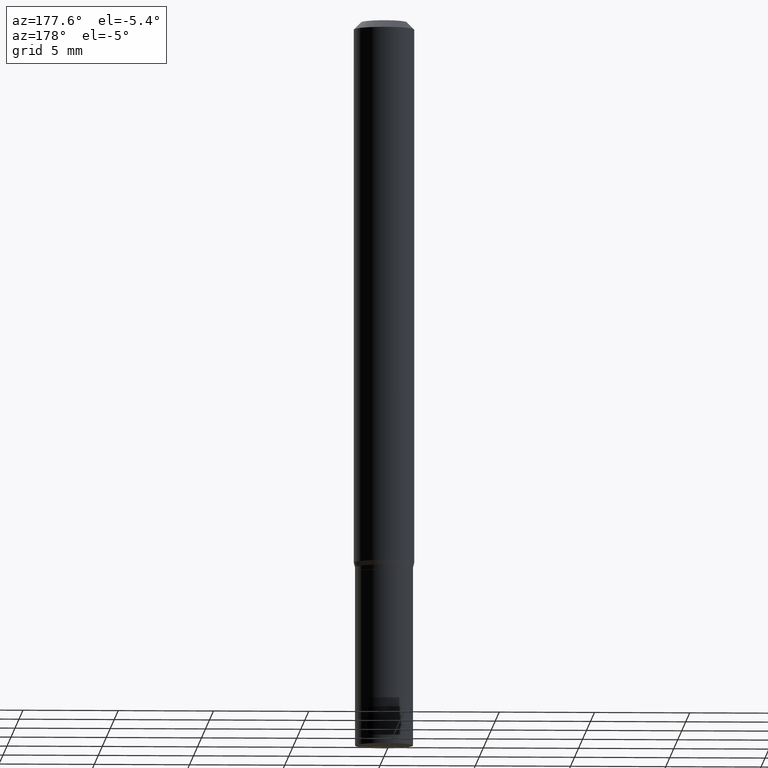
[diagram: clean part render]
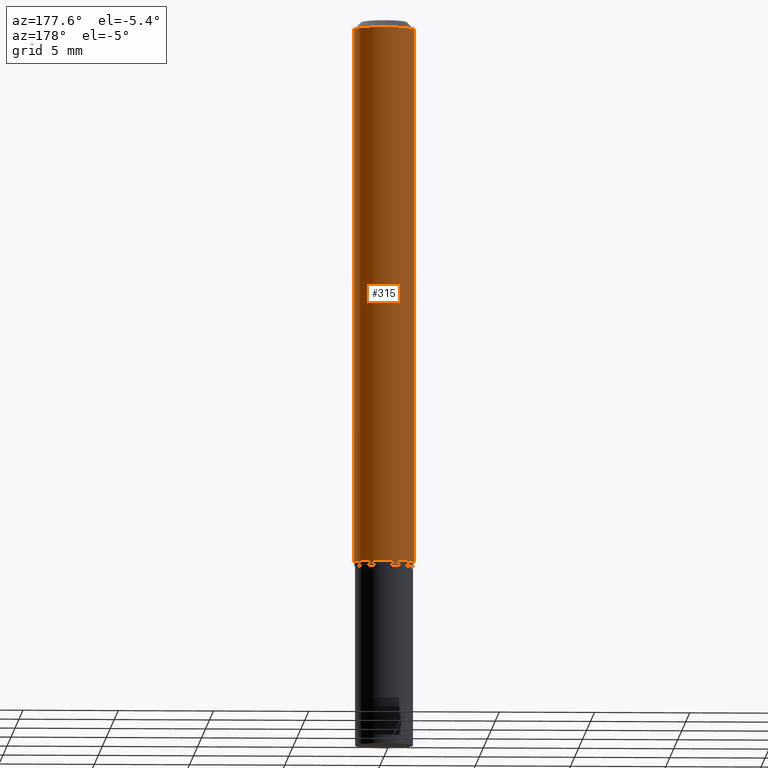
[diagram: same view with one face highlighted and labeled with its STEP entity id]
A machine part, auxiliary view. The second image highlights one B-rep face of the part: STEP entity #315.
In plain terms, the highlighted cylindrical surface (edge-blend (fillet) strip) has radius 1.5875 mm, axis along (-0, 0, 1).
Its self-contained STEP definition (entity closure, byte-faithful):
#6 = EDGE_CURVE ( 'NONE', #292, #28, #214, .T. ) ;
#8 = VERTEX_POINT ( 'NONE', #203 ) ;
#23 = DIRECTION ( 'NONE',  ( -2.445468806185136877E-29, 3.491481338843145188E-15, 1.000000000000000000 ) ) ;
#24 = LINE ( 'NONE', #156, #73 ) ;
#25 = CIRCLE ( 'NONE', #331, 0.06250000000000000000 ) ;
#27 = ORIENTED_EDGE ( 'NONE', *, *, #369, .F. ) ;
#28 = VERTEX_POINT ( 'NONE', #309 ) ;
#62 = CARTESIAN_POINT ( 'NONE',  ( 2.740563216406686834E-29, -3.912797948517154069E-15, -1.120669872981078674 ) ) ;
#73 = VECTOR ( 'NONE', #346, 39.37007874015748143 ) ;
#79 = ORIENTED_EDGE ( 'NONE', *, *, #403, .F. ) ;
#85 = EDGE_CURVE ( 'NONE', #28, #226, #24, .T. ) ;
#89 = FACE_OUTER_BOUND ( 'NONE', #259, .T. ) ;
#119 = DIRECTION ( 'NONE',  ( -2.445468806185136597E-29, 3.491481338843145583E-15, 1.000000000000000000 ) ) ;
#121 = VECTOR ( 'NONE', #23, 39.37007874015748143 ) ;
#125 = ORIENTED_EDGE ( 'NONE', *, *, #6, .T. ) ;
#144 = CARTESIAN_POINT ( 'NONE',  ( 0.06250000000000000000, -4.349233115872546527E-15, -1.120669872981078674 ) ) ;
#154 = CYLINDRICAL_SURFACE ( 'NONE', #305, 0.06250000000000000000 ) ;
#156 = CARTESIAN_POINT ( 'NONE',  ( -0.06250000000000000000, 4.440892098500626162E-16, -3.074334431409316114E-30 ) ) ;
#165 = CARTESIAN_POINT ( 'NONE',  ( 0.000000000000000000, 0.000000000000000000, 0.000000000000000000 ) ) ;
#195 = DIRECTION ( 'NONE',  ( -2.445468806185136597E-29, 3.491481338843145583E-15, 1.000000000000000000 ) ) ;
#196 = ORIENTED_EDGE ( 'NONE', *, *, #85, .T. ) ;
#203 = CARTESIAN_POINT ( 'NONE',  ( 0.06250000000000000000, -4.888073874380388472E-16, -0.01499999999999999944 ) ) ;
#214 = CIRCLE ( 'NONE', #275, 0.06250000000000000000 ) ;
#226 = VERTEX_POINT ( 'NONE', #285 ) ;
#233 = CARTESIAN_POINT ( 'NONE',  ( 0.06250000000000000000, -4.364351673553916694E-16, 3.047610484872459871E-30 ) ) ;
#259 = EDGE_LOOP ( 'NONE', ( #125, #196, #27, #79 ) ) ;
#275 = AXIS2_PLACEMENT_3D ( 'NONE', #62, #119, #378 ) ;
#285 = CARTESIAN_POINT ( 'NONE',  ( -0.06250000000000000000, -1.538495874449838155E-15, -0.01499999999999999944 ) ) ;
#292 = VERTEX_POINT ( 'NONE', #144 ) ;
#305 = AXIS2_PLACEMENT_3D ( 'NONE', #165, #347, #465 ) ;
#309 = CARTESIAN_POINT ( 'NONE',  ( -0.06250000000000000000, -3.468708738667092242E-15, -1.120669872981078674 ) ) ;
#315 = ADVANCED_FACE ( 'NONE', ( #89 ), #154, .T. ) ;
#331 = AXIS2_PLACEMENT_3D ( 'NONE', #459, #195, #449 ) ;
#346 = DIRECTION ( 'NONE',  ( -2.445468806185136877E-29, 3.491481338843145188E-15, 1.000000000000000000 ) ) ;
#347 = DIRECTION ( 'NONE',  ( -2.445468806185136597E-29, 3.491481338843145583E-15, 1.000000000000000000 ) ) ;
#369 = EDGE_CURVE ( 'NONE', #8, #226, #25, .T. ) ;
#378 = DIRECTION ( 'NONE',  ( 1.000000000000000000, -6.982962677686270655E-15, 0.000000000000000000 ) ) ;
#403 = EDGE_CURVE ( 'NONE', #292, #8, #447, .T. ) ;
#447 = LINE ( 'NONE', #233, #121 ) ;
#449 = DIRECTION ( 'NONE',  ( 1.000000000000000000, -6.982962677686266711E-15, 0.000000000000000000 ) ) ;
#459 = CARTESIAN_POINT ( 'NONE',  ( 3.668203209277705088E-31, -5.237222008264718399E-17, -0.01499999999999999944 ) ) ;
#465 = DIRECTION ( 'NONE',  ( 1.000000000000000000, -6.982962677686266711E-15, 4.876176775795935793E-29 ) ) ;